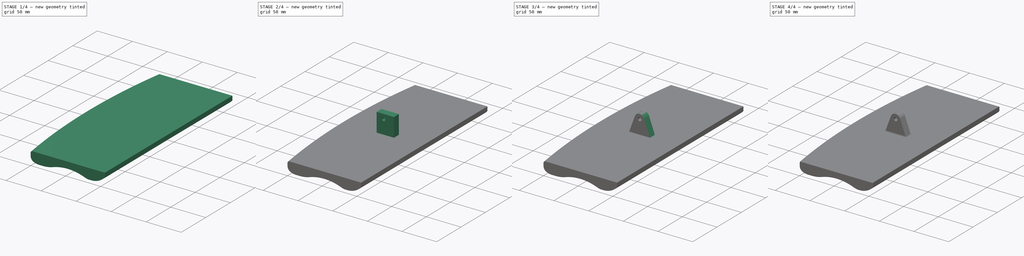
[diagram: build sequence overview — one tinted view per stage of 4, left to right]
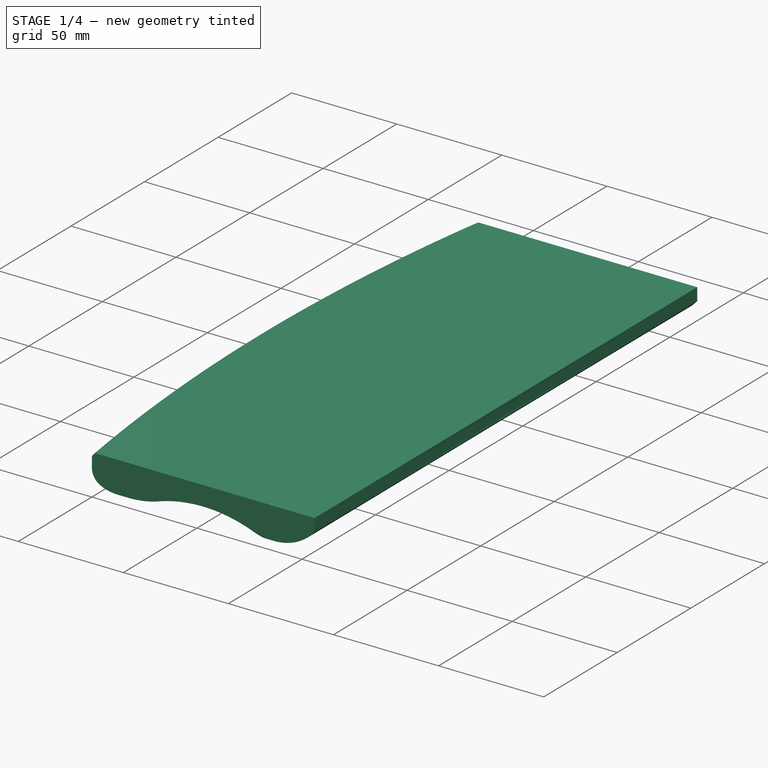
[diagram: stage 1 of 4 — iso view after this stage's code; geometry added in this stage tinted green]
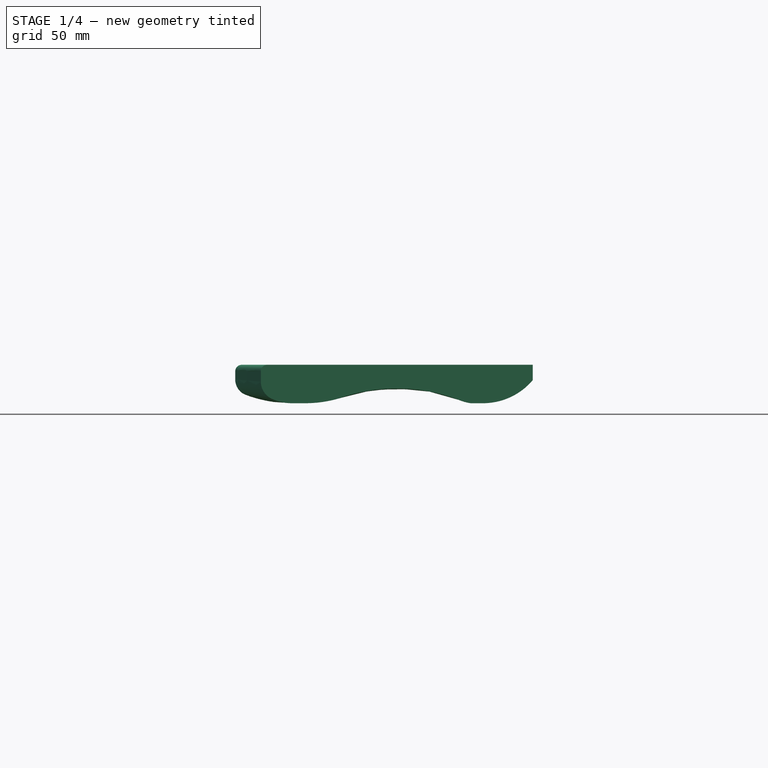
[diagram: stage 1 of 4 — front view after this stage's code; geometry added in this stage tinted green]
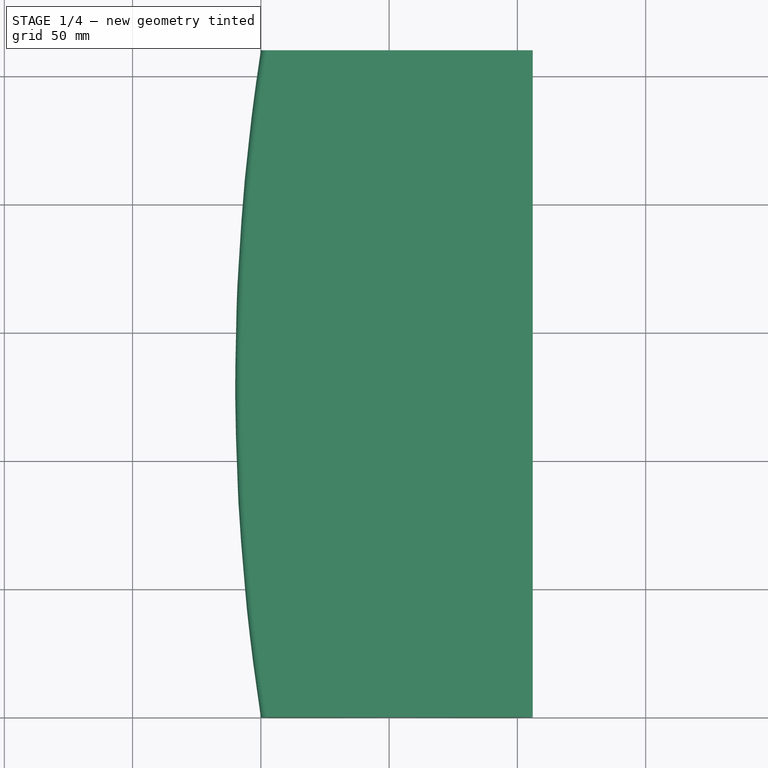
[diagram: stage 1 of 4 — top view after this stage's code; geometry added in this stage tinted green]
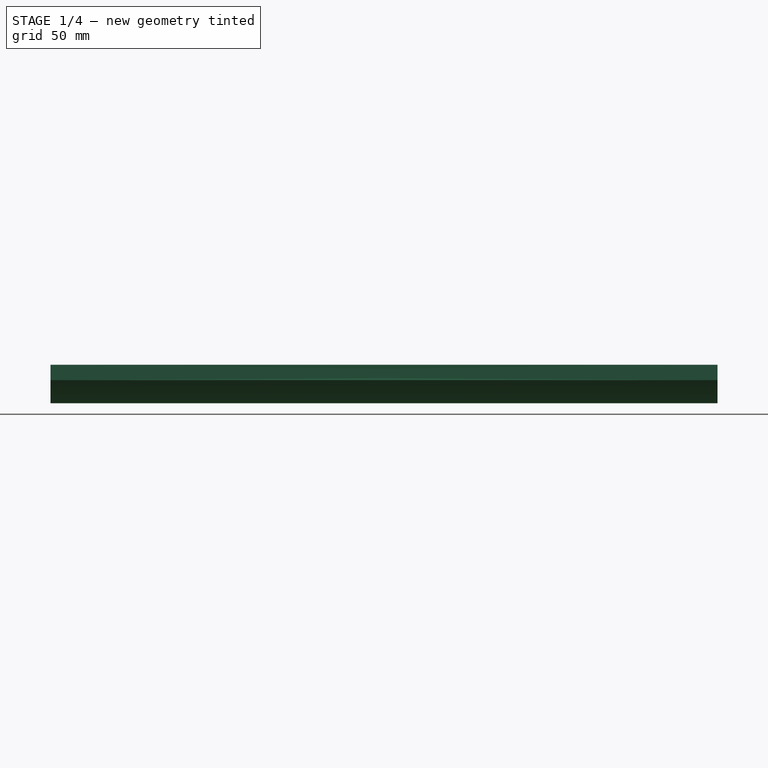
[diagram: stage 1 of 4 — right view after this stage's code; geometry added in this stage tinted green]
FCSTD DOCUMENT  (FreeCAD 0.19R19327 (Git))
Label: Pala_v3
License: All rights reserved
LicenseURL: http://en.wikipedia.org/wiki/All_rights_reserved
objects: Sketcher::SketchObject×5, Part::Part2DObjectPython×5, PartDesign::Pad×3, PartDesign::Fillet×3, PartDesign::Pocket×2, Part::Loft×1, PartDesign::ShapeBinder×1, PartDesign::Plane×1, PartDesign::FeatureBase×1, PartDesign::Body×1
note: 28 computed .brp shape members not serialized (recipe doc carries the construction recipe); baked Part::Feature solids carry a one-line shape summary decoded from their .brp

FEATURE [Sketcher::SketchObject] Sketch
  MapMode = 5
  Placement = pos=(0,0,0) rot=(1,0,0;1.5708rad)
  Support = -> [XZ_Plane]
  sketch-geometry (12):
    g0: LineSegment StartX=0 StartY=8.41279 StartZ=0 EndX=0 EndY=12.45 EndZ=0
    g1: LineSegment StartX=2.55 StartY=15 StartZ=0 EndX=106 EndY=15 EndZ=0
    g2: LineSegment StartX=106 StartY=15 StartZ=0 EndX=106 EndY=9 EndZ=0
    g3: ArcOfCircle CenterX=12.22 CenterY=19.17 CenterZ=0 NormalX=0 NormalY=0 NormalZ=1 AngleXU=0 Radius=19.17 StartAngle=4.28882 EndAngle=4.71239
    g4: ArcOfCircle CenterX=53 CenterY=-61.7274 CenterZ=0 NormalX=0 NormalY=0 NormalZ=1 AngleXU=0 Radius=67.5 StartAngle=1.20422 EndAngle=1.91498
    g5: ArcOfCircle CenterX=86.5199 CenterY=25.579 CenterZ=0 NormalX=0 NormalY=0 NormalZ=1 AngleXU=0 Radius=26.02 StartAngle=4.34581 EndAngle=4.52801
    g6: ArcOfCircle CenterX=2.55 CenterY=12.45 CenterZ=0 NormalX=0 NormalY=0 NormalZ=1 AngleXU=0 Radius=2.55 StartAngle=1.5708 EndAngle=3.14159
    g7: ArcOfCircle CenterX=7.37 CenterY=8.41279 CenterZ=0 NormalX=0 NormalY=0 NormalZ=1 AngleXU=0 Radius=7.37 StartAngle=3.14159 EndAngle=4.28882
    g8: LineSegment StartX=12.22 StartY=0 StartZ=0 EndX=17.22 EndY=0 EndZ=0
    g9: ArcOfCircle CenterX=17.22 CenterY=47.52 CenterZ=0 NormalX=0 NormalY=0 NormalZ=1 AngleXU=0 Radius=47.52 StartAngle=4.71239 EndAngle=4.98957
    g10: ArcOfCircle CenterX=86.5199 CenterY=25.579 CenterZ=0 NormalX=0 NormalY=0 NormalZ=1 AngleXU=0 Radius=25.58 StartAngle=4.72136 EndAngle=5.57807
    g11: LineSegment StartX=81.7495 StartY=0 StartZ=0 EndX=86.7495 EndY=0 EndZ=0
  constraints (37):
    c: Vertical(g0)
    c: Horizontal(g1)
    c: Coincident(g1,g2)
    c: Vertical(g2)
    c: DistanceY(g2,g2) = 6
    c: Tangent(g3,g-1)
    c: Radius(g4) = 67.5
    c: Tangent(g5,g4) = 1.5708
    c: Coincident(g2,g10)
    c: Tangent(g0,g6) = 1.5708
    c: Tangent(g1,g6) = 1.5708
    c: Tangent(g0,g7) = 1.5708
    c: Tangent(g3,g7) = -1.5708
    c: PointOnObject(g0,g-2)
    c: DistanceX(g8,g8) = 5
    c: Coincident(g8,g3)
    c: Coincident(g9,g8)
    c: Coincident(g9,g4)
    c: Coincident(g5,g10)
    c: PointOnObject(g10,g-1)
    c: PointOnObject(g5,g-1)
    c: DistanceX(g-1,g1) = 106
    c: DistanceY(g-1,g1) = 15
    c: Coincident(g11,g5)
    c: Coincident(g11,g10)
    c: DistanceX(g11,g11) = 5
    c: DistanceX(g1,g1) = 103.45
    c: PointOnObject(g8,g-1)
    c: Horizontal(g8)
    c: DistanceX(g-1,g3) = 12.22
    c: DistanceX(g-1,g4) = 53
    c: Radius(g7) = 7.37
    c: Radius(g3) = 19.17
    c: Radius(g5) = 26.02
    c: Radius(g10) = 25.58
    c: Tangent(g9,g-1)
    c: Radius(g9) = 47.52
FEATURE [Part::Part2DObjectPython] Line  # Draft 2D object (typed FeaturePython)
  Area = 0
  ChamferSize = 0
  Closed = false
  End = (0,260,12.45)
  FilletRadius = 0
  Length = 260
  MakeFace = true
  Placement = pos=(0,-2.8e-15,12.45) rot=(0,0,1;0rad)
  Points = (2) [(0,0,0),(7.9602e-15,260,0)]
  Start = (0,-2.8e-15,12.45)
  Subdivisions = 0
FEATURE [Part::Part2DObjectPython] Arc  # Draft 2D object (typed FeaturePython)
  Area = 0
  FirstAngle = 0
  LastAngle = 17.5948
  MakeFace = true
  Placement = pos=(840,130,12.45) rot=(-0.076696,0.997054,0;3.14159rad)
  Radius = 850
FEATURE [Part::Part2DObjectPython] Line001  # Draft 2D object (typed FeaturePython)
  Area = 0
  ChamferSize = 0
  Closed = false
  End = (-10,130,12.45)
  FilletRadius = 0
  Length = 10
  MakeFace = true
  Placement = pos=(0,130,12.45) rot=(0,0,1;0rad)
  Points = (2) [(0,0,0),(-10,0,0)]
  Start = (0,130,12.45)
  Subdivisions = 0
FEATURE [Part::Part2DObjectPython] Line002  # Draft 2D object (typed FeaturePython)
  Area = 0
  ChamferSize = 0
  Closed = false
  End = (106,260,12)
  FilletRadius = 0
  Length = 260
  MakeFace = true
  Placement = pos=(106,5.1e-14,12) rot=(0,0,1;0rad)
  Points = (2) [(0,0,0),(0,260,0)]
  Start = (106,5.1e-14,12)
  Subdivisions = 0
FEATURE [Sketcher::SketchObject] Sketch001
  AttachmentOffset = pos=(0,0,-130) rot=(0,0,1;0rad)
  MapMode = 5
  Placement = pos=(0,130,2.89e-14) rot=(1,0,0;1.5708rad)
  Support = -> [XZ_Plane]
  sketch-geometry (12):
    g0: LineSegment StartX=-10 StartY=9.2968 StartZ=0 EndX=-10 EndY=12.43 EndZ=0
    g1: LineSegment StartX=-7.43 StartY=15 StartZ=0 EndX=105.891 EndY=15 EndZ=0
    g2: LineSegment StartX=105.891 StartY=15 StartZ=0 EndX=105.891 EndY=9 EndZ=0
    g3: ArcOfCircle CenterX=12.22 CenterY=52.04 CenterZ=0 NormalX=0 NormalY=0 NormalZ=1 AngleXU=0 Radius=52.04 StartAngle=4.34709 EndAngle=4.71239
    g4: ArcOfCircle CenterX=53 CenterY=-61.7693 CenterZ=0 NormalX=0 NormalY=0 NormalZ=1 AngleXU=0 Radius=67.5 StartAngle=1.20547 EndAngle=1.90388
    g5: ArcOfCircle CenterX=86.4106 CenterY=25.579 CenterZ=0 NormalX=0 NormalY=0 NormalZ=1 AngleXU=0 Radius=26.02 StartAngle=4.34706 EndAngle=4.52801
    g6: ArcOfCircle CenterX=-7.43 CenterY=12.43 CenterZ=0 NormalX=0 NormalY=0 NormalZ=1 AngleXU=0 Radius=2.57 StartAngle=1.5708 EndAngle=3.14159
    g7: ArcOfCircle CenterX=-3.45 CenterY=9.2968 CenterZ=0 NormalX=0 NormalY=0 NormalZ=1 AngleXU=0 Radius=6.55 StartAngle=3.14159 EndAngle=4.25032
    g8: LineSegment StartX=12.22 StartY=0 StartZ=0 EndX=17.22 EndY=0 EndZ=0
    g9: ArcOfCircle CenterX=17.22 CenterY=47.52 CenterZ=0 NormalX=0 NormalY=0 NormalZ=1 AngleXU=0 Radius=47.52 StartAngle=4.71239 EndAngle=5.00506
    g10: ArcOfCircle CenterX=86.4106 CenterY=25.579 CenterZ=0 NormalX=0 NormalY=0 NormalZ=1 AngleXU=0 Radius=25.58 StartAngle=4.72136 EndAngle=5.57807
    g11: LineSegment StartX=81.6402 StartY=0 StartZ=0 EndX=86.6402 EndY=0 EndZ=0
  constraints (38):
    c: Vertical(g0)
    c: Horizontal(g1)
    c: Coincident(g1,g2)
    c: Vertical(g2)
    c: DistanceY(g2,g2) = 6
    c: Tangent(g3,g-1)
    c: Radius(g4) = 67.5
    c: Tangent(g5,g4) = 1.5708
    c: Coincident(g2,g10)
    c: Tangent(g0,g6) = 1.5708
    c: Tangent(g1,g6) = 1.5708
    c: Tangent(g0,g7) = 1.5708
    c: DistanceX(g8,g8) = 5
    c: Coincident(g8,g3)
    c: Coincident(g9,g8)
    c: Coincident(g9,g4)
    c: Coincident(g5,g10)
    c: PointOnObject(g10,g-1)
    c: PointOnObject(g5,g-1)
    c: DistanceY(g-1,g1) = 15
    c: Coincident(g11,g5)
    c: Coincident(g11,g10)
    c: DistanceX(g11,g11) = 5
    c: PointOnObject(g8,g-1)
    c: Horizontal(g8)
    c: DistanceX(g-1,g3) = 12.22
    c: DistanceX(g-1,g4) = 53
    c: Radius(g5) = 26.02
    c: Radius(g10) = 25.58
    c: Tangent(g9,g-1)
    c: Radius(g9) = 47.52
    c: DistanceX(g0,g-1) = 10
    c: Coincident(g7,g3)
    c: Radius(g3) = 52.04
    c: Radius(g7) = 6.55
    c: Radius(g6) = 2.57
    c: DistanceX(g3,g-1) = 6.37
    c: DistanceX(g-1,g4) = 30.93
FEATURE [Part::Part2DObjectPython] Clone2D  label="Sketch (2D)"  # Draft 2D object (typed FeaturePython)
  Fuse = false
  Objects = -> [Sketch]
  Placement = pos=(0,260,0) rot=(1,0,0;1.5708rad)
  Scale = (1,1,1)
FEATURE [Part::Loft] Loft
  Closed = false
  MaxDegree = 5
  Ruled = false
  Sections = -> [Sketch,Sketch001,Clone2D]
  Solid = true
FEATURE [PartDesign::ShapeBinder] CopyLoft
  TraceSupport = false
FEATURE [PartDesign::Plane] DatumPlane
  Length = 169.645
  MapMode = 45
  Placement = pos=(50.8717,130,15) rot=(0,0,1;0rad)
  ResizeMode = 0
  Support = -> [CopyLoft]
  Width = 323.645
FEATURE [PartDesign::FeatureBase] BaseFeature
  BaseFeature = -> Loft
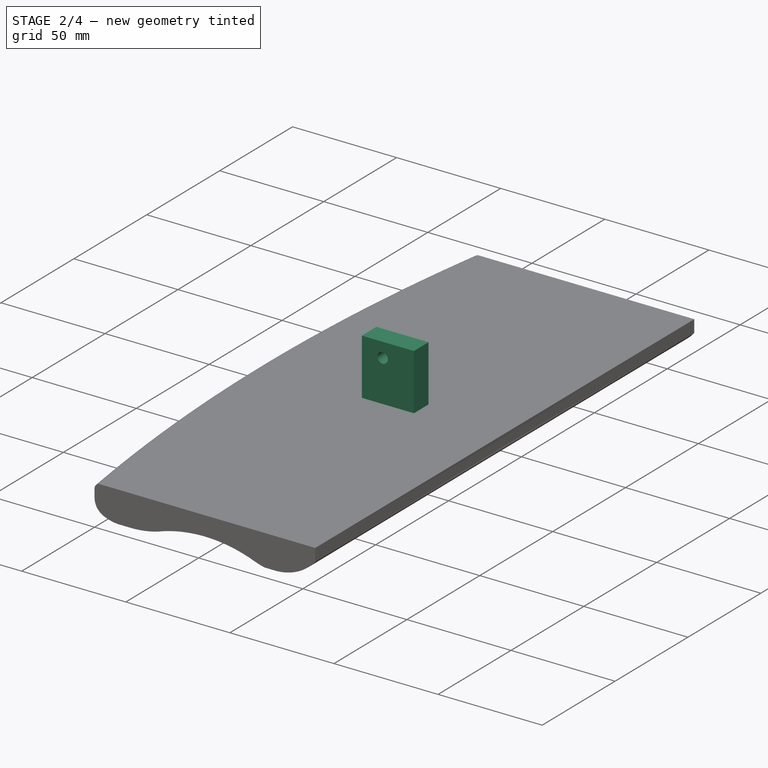
[diagram: stage 2 of 4 — iso view after this stage's code; geometry added in this stage tinted green]
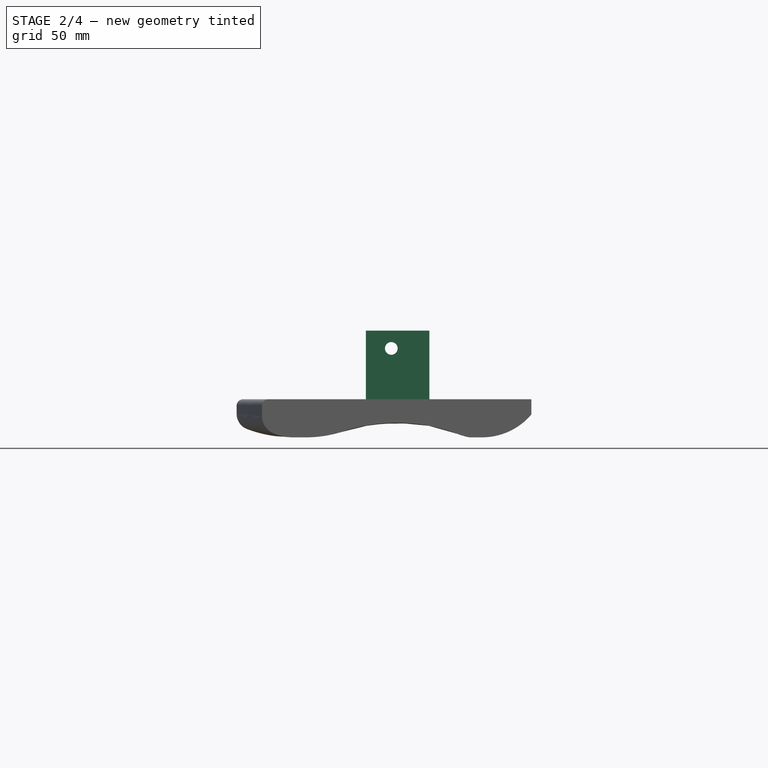
[diagram: stage 2 of 4 — front view after this stage's code; geometry added in this stage tinted green]
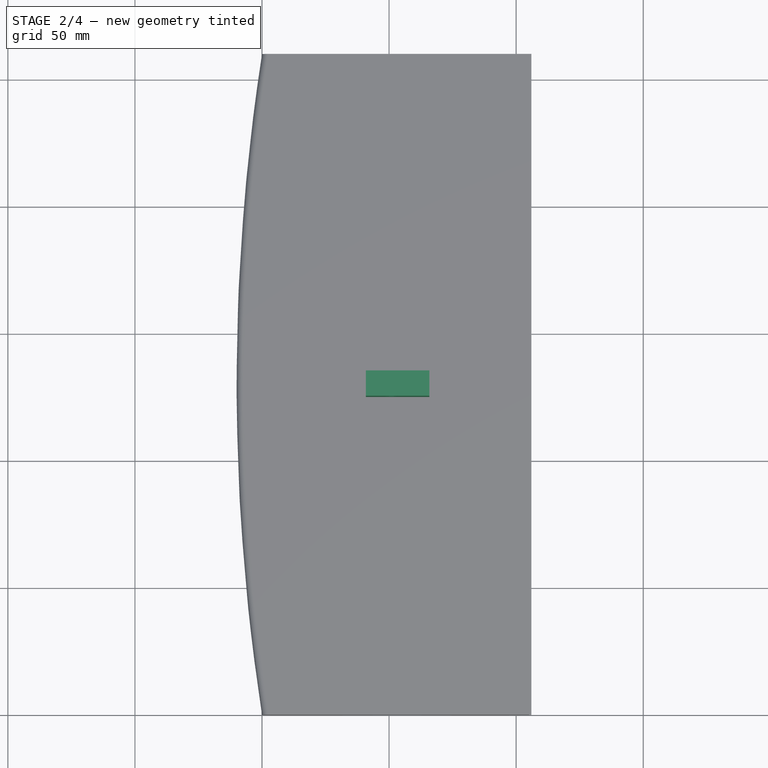
[diagram: stage 2 of 4 — top view after this stage's code; geometry added in this stage tinted green]
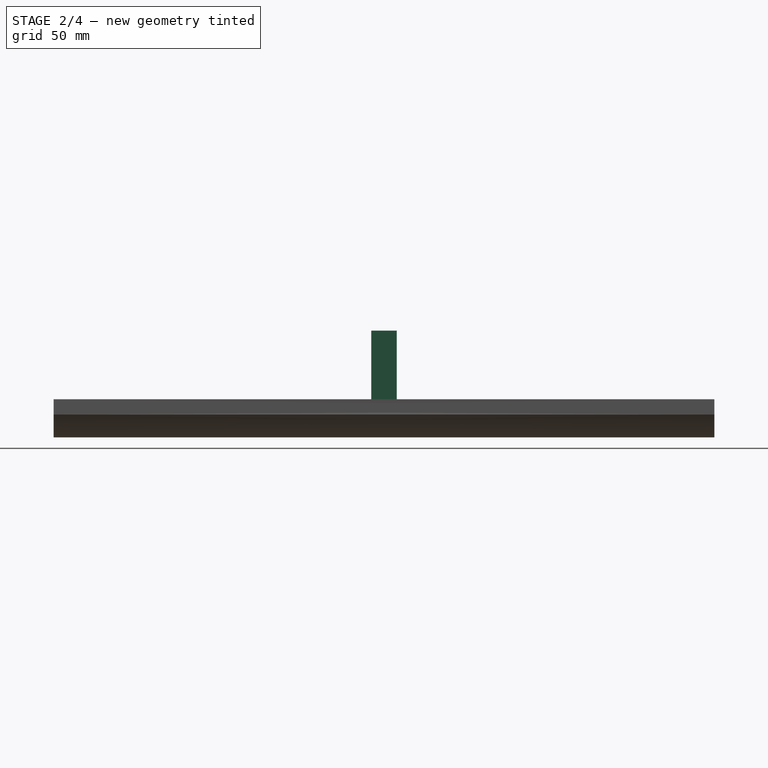
[diagram: stage 2 of 4 — right view after this stage's code; geometry added in this stage tinted green]
FEATURE [Sketcher::SketchObject] Sketch002
  MapMode = 5
  Placement = pos=(50.8717,130,15) rot=(0,0,1;0rad)
  Support = -> [DatumPlane]
  sketch-geometry (4):
    g0: LineSegment StartX=-10 StartY=5 StartZ=0 EndX=10 EndY=5 EndZ=0
    g1: LineSegment StartX=10 StartY=5 StartZ=0 EndX=10 EndY=-5 EndZ=0
    g2: LineSegment StartX=10 StartY=-5 StartZ=0 EndX=-10 EndY=-5 EndZ=0
    g3: LineSegment StartX=-10 StartY=-5 StartZ=0 EndX=-10 EndY=5 EndZ=0
  constraints (11):
    c: Coincident(g0,g1)
    c: Coincident(g1,g2)
    c: Coincident(g2,g3)
    c: Coincident(g3,g0)
    c: Horizontal(g0)
    c: Horizontal(g2)
    c: Vertical(g1)
    c: Vertical(g3)
    c: Symmetric(g0,g2,g-1)
    c: DistanceX(g0,g0) = 20
    c: DistanceY(g1,g1) = 10
FEATURE [PartDesign::Pad] Pad
  BaseFeature = -> BaseFeature
  Length = 27
  Length2 = 100
  Profile = -> Sketch002
  Type = 0
FEATURE [Sketcher::SketchObject] Sketch003
  ExternalGeometry = -> [Pad]
  MapMode = 5
  Placement = pos=(0,125,0) rot=(1,0,0;1.5708rad)
  Support = -> [Pad]
  sketch-geometry (1):
    g0: Circle CenterX=50.8717 CenterY=35 CenterZ=0 NormalX=0 NormalY=0 NormalZ=1 AngleXU=0 Radius=2.5
  constraints (3):
    c: DistanceX(g-3,g0) = 10
    c: DistanceY(g0,g-3) = 7
    c: Radius(g0) = 2.5
FEATURE [PartDesign::Pocket] Pocket
  BaseFeature = -> Pad
  Length = 5
  Length2 = 100
  Profile = -> Sketch003
  Type = 1
FEATURE [PartDesign::Pad] Pad001
  BaseFeature = -> Pocket
  Length = 5
  Length2 = 100
  Profile = -> Pocket [Face17]
  Refine = true
  Type = 0
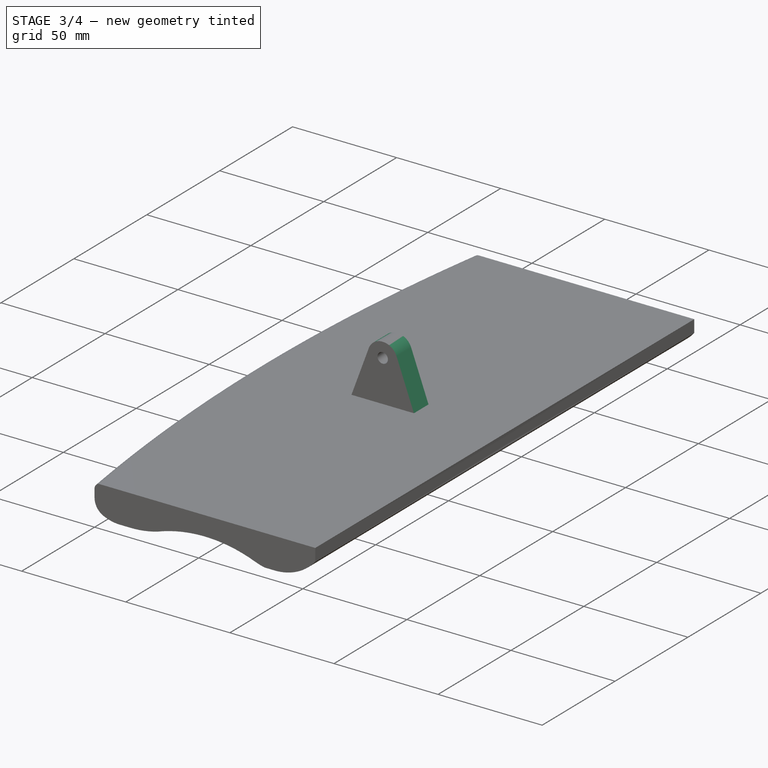
[diagram: stage 3 of 4 — iso view after this stage's code; geometry added in this stage tinted green]
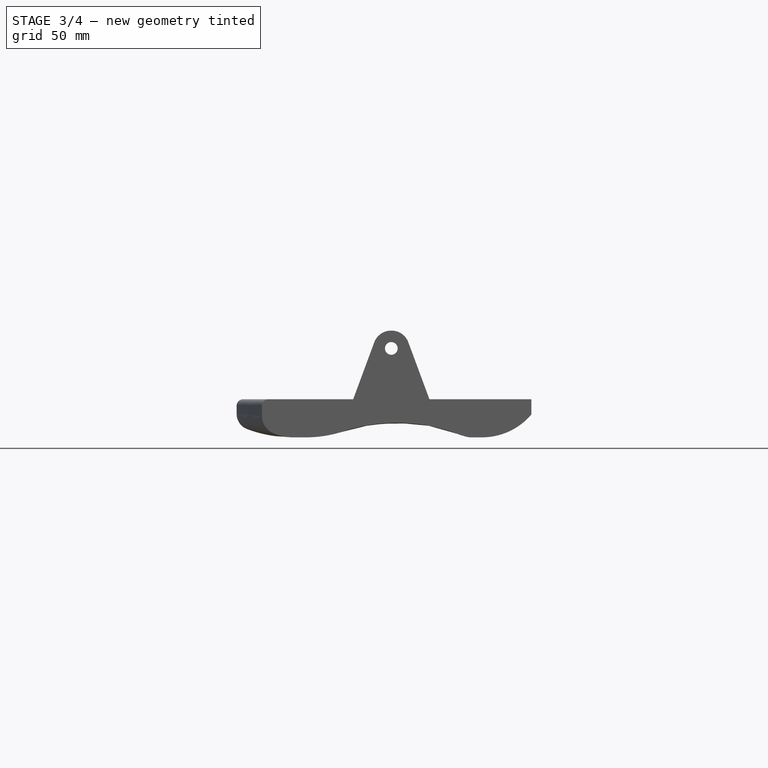
[diagram: stage 3 of 4 — front view after this stage's code; geometry added in this stage tinted green]
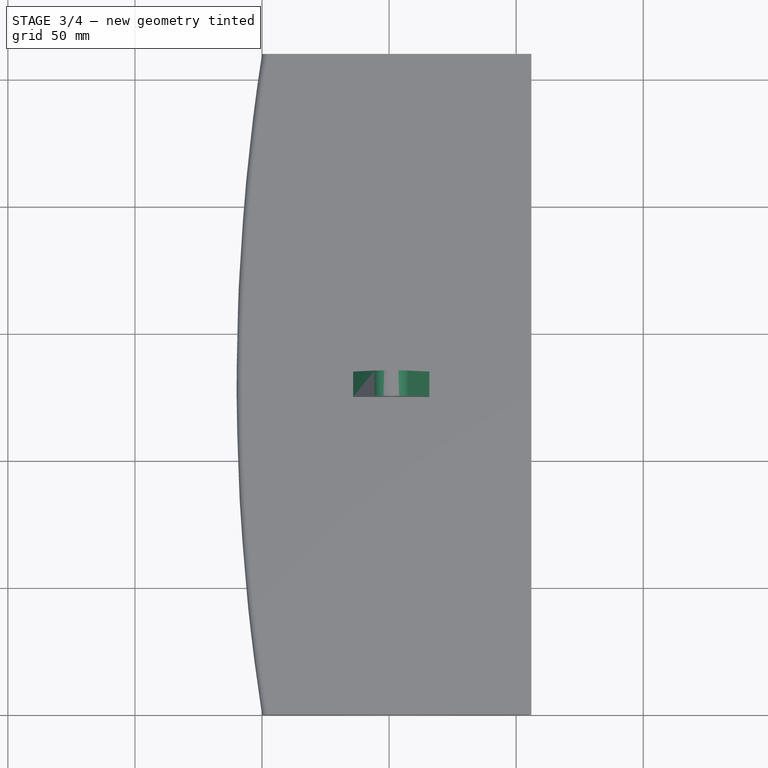
[diagram: stage 3 of 4 — top view after this stage's code; geometry added in this stage tinted green]
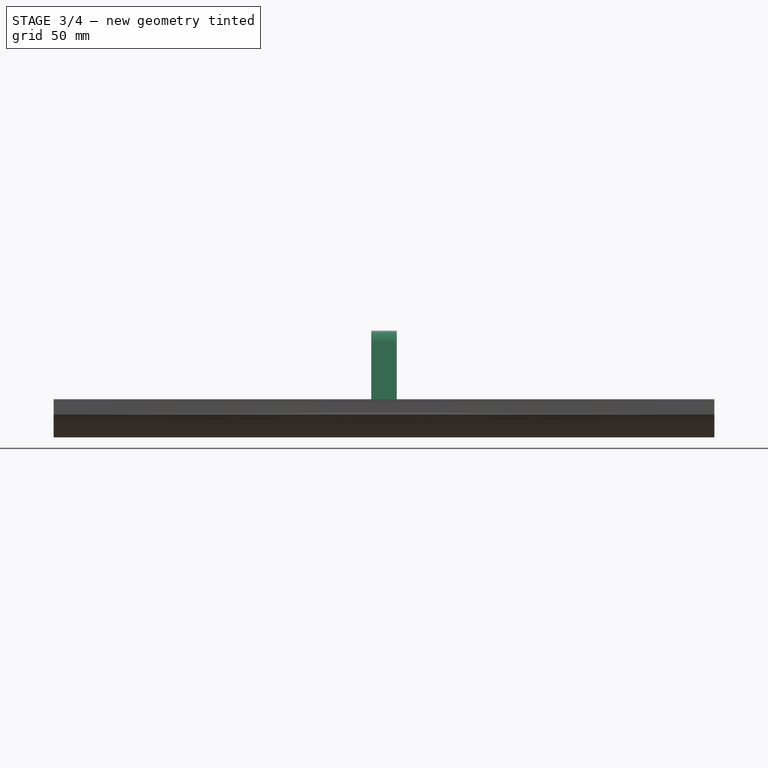
[diagram: stage 3 of 4 — right view after this stage's code; geometry added in this stage tinted green]
FEATURE [PartDesign::Pad] Pad002
  BaseFeature = -> Pad001
  Length = 5
  Length2 = 100
  Profile = -> Pad001 [Face16]
  Refine = true
  Type = 0
FEATURE [Sketcher::SketchObject] Sketch004
  ExternalGeometry = -> [Pad002]
  MapMode = 5
  Placement = pos=(0,125,0) rot=(1,0,0;1.5708rad)
  Support = -> [Pad002]
  sketch-geometry (6):
    g0: LineSegment StartX=65.8717 StartY=15 StartZ=0 EndX=55.8717 EndY=42 EndZ=0
    g1: LineSegment StartX=55.8717 StartY=42 StartZ=0 EndX=65.8717 EndY=42 EndZ=0
    g2: LineSegment StartX=65.8717 StartY=42 StartZ=0 EndX=65.8717 EndY=15 EndZ=0
    g3: LineSegment StartX=35.8717 StartY=15 StartZ=0 EndX=35.8717 EndY=42 EndZ=0
    g4: LineSegment StartX=35.8717 StartY=42 StartZ=0 EndX=45.8717 EndY=42 EndZ=0
    g5: LineSegment StartX=45.8717 StartY=42 StartZ=0 EndX=35.8717 EndY=15 EndZ=0
  constraints (14):
    c: Coincident(g-4,g0)
    c: Coincident(g0,g1)
    c: Coincident(g1,g-4)
    c: Coincident(g1,g2)
    c: Coincident(g2,g0)
    c: PointOnObject(g0,g-3)
    c: Coincident(g-5,g3)
    c: Coincident(g3,g-5)
    c: Coincident(g3,g4)
    c: Horizontal(g4)
    c: Coincident(g4,g5)
    c: Coincident(g5,g3)
    c: Equal(g4,g1)
    c: DistanceX(g1,g1) = 10
FEATURE [PartDesign::Pocket] Pocket001
  BaseFeature = -> Pad002
  Length = 5
  Length2 = 100
  Profile = -> Sketch004
  Refine = true
  Type = 1
FEATURE [PartDesign::Fillet] Fillet
  Base = -> Pocket001 [Edge43,Edge47]
  BaseFeature = -> Pocket001
  Radius = 7
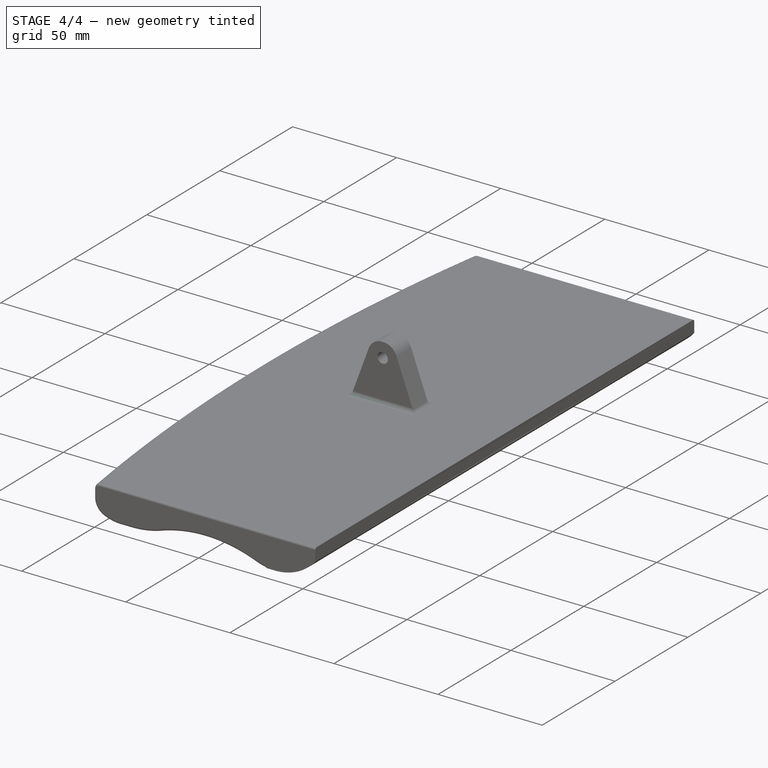
[diagram: stage 4 of 4 — iso view after this stage's code; geometry added in this stage tinted green]
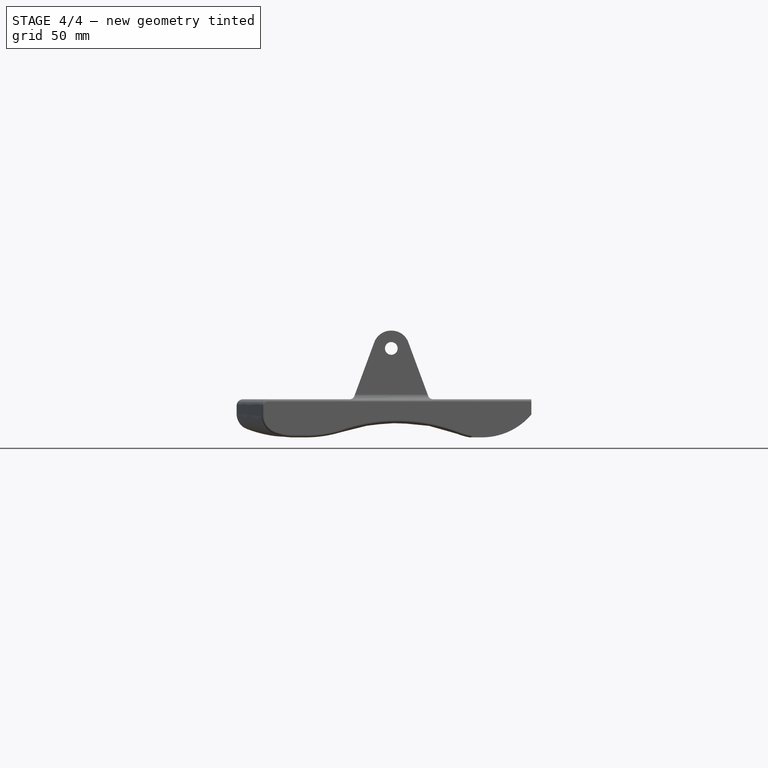
[diagram: stage 4 of 4 — front view after this stage's code; geometry added in this stage tinted green]
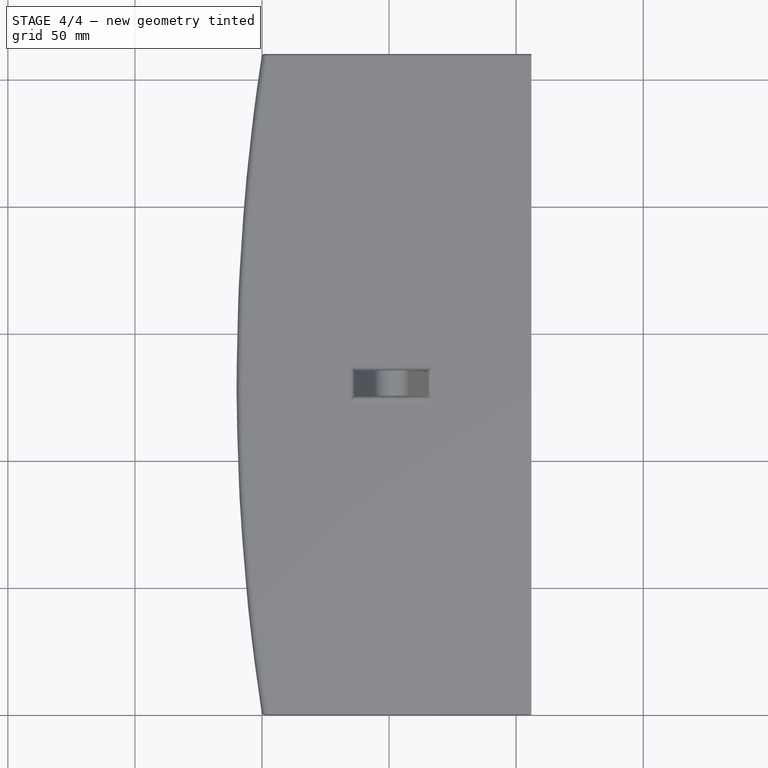
[diagram: stage 4 of 4 — top view after this stage's code; geometry added in this stage tinted green]
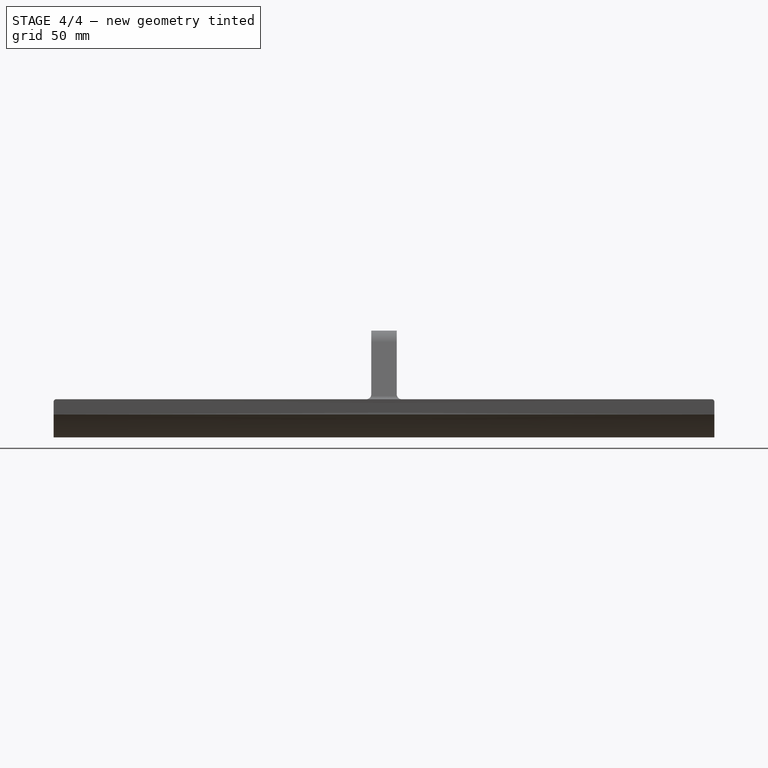
[diagram: stage 4 of 4 — right view after this stage's code; geometry added in this stage tinted green]
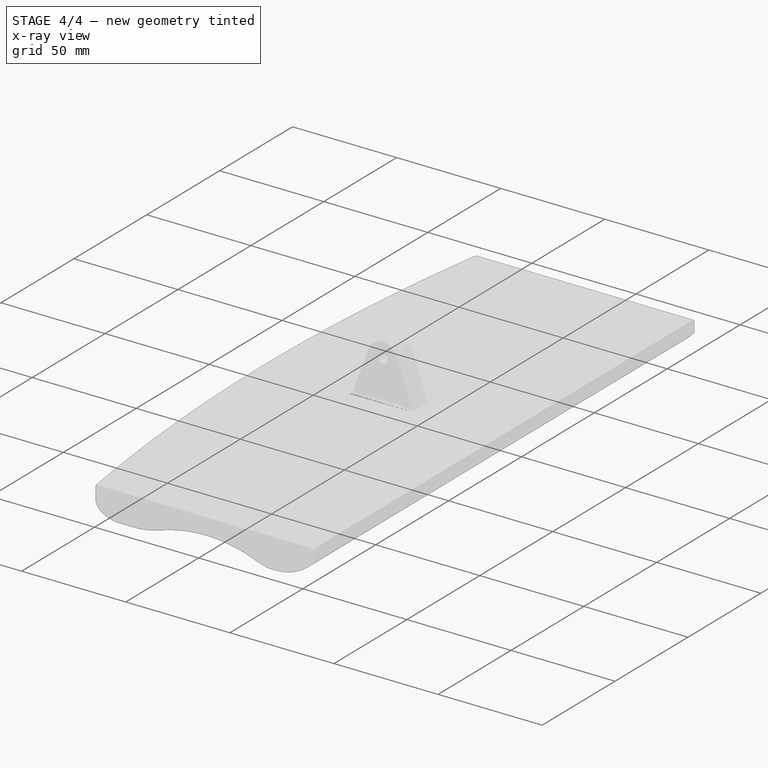
[diagram: stage 4 of 4 — x-ray composite at the iso view; earlier geometry ghosted, this stage's added geometry solid]
FEATURE [PartDesign::Fillet] Fillet001
  Base = -> Fillet [Edge6,Edge18,Edge17,Edge3]
  BaseFeature = -> Fillet
  Radius = 2
FEATURE [PartDesign::Fillet] Fillet002
  Base = -> Fillet001 [Edge37,Edge35]
  BaseFeature = -> Fillet001
  Radius = 1
FEATURE [PartDesign::Body] Body
  BaseFeature = -> Loft
  Group = -> [BaseFeature,Sketch,DatumPlane,CopyLoft,Sketch002,Pad,Sketch003,Pocket,Pad001,Pad002,Sketch004,Pocket001,Fillet,Fillet001,Fillet002]
  Origin = -> Origin
  Tip = -> Fillet002
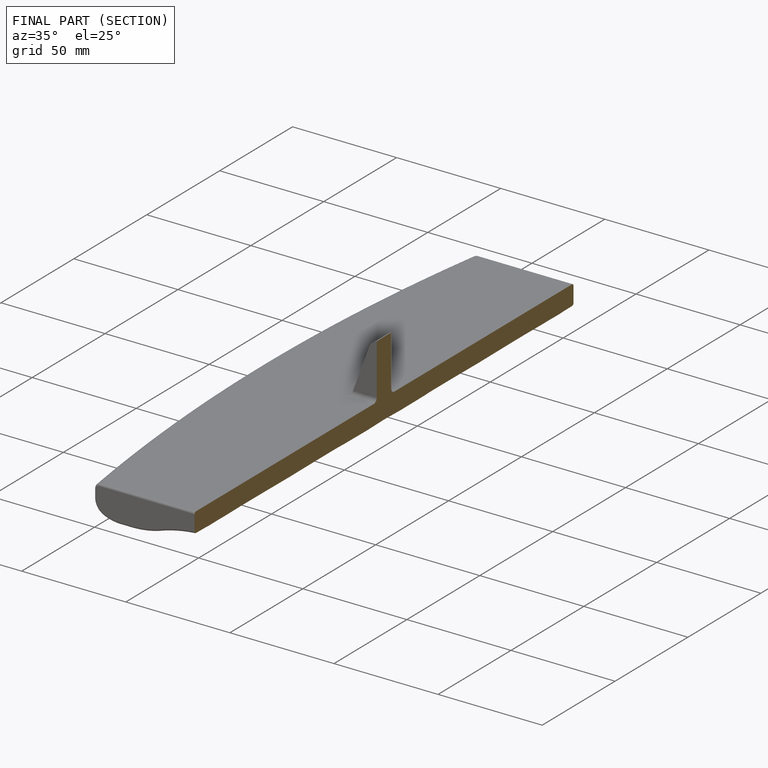
[diagram: finished part — half-section view (interior)]
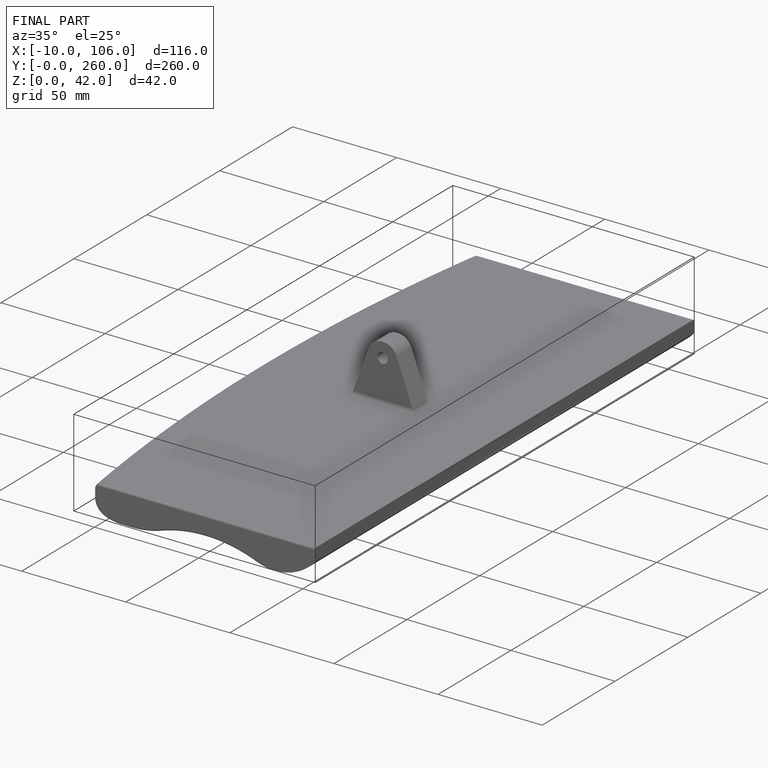
[diagram: finished part — iso view with bounding-box wireframe]
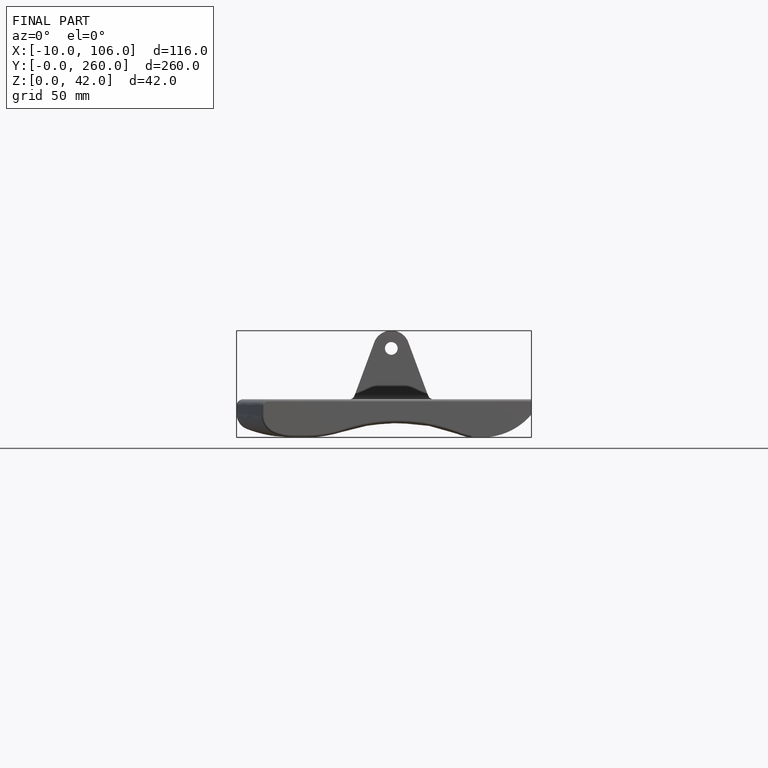
[diagram: finished part — front view with bounding-box wireframe]
